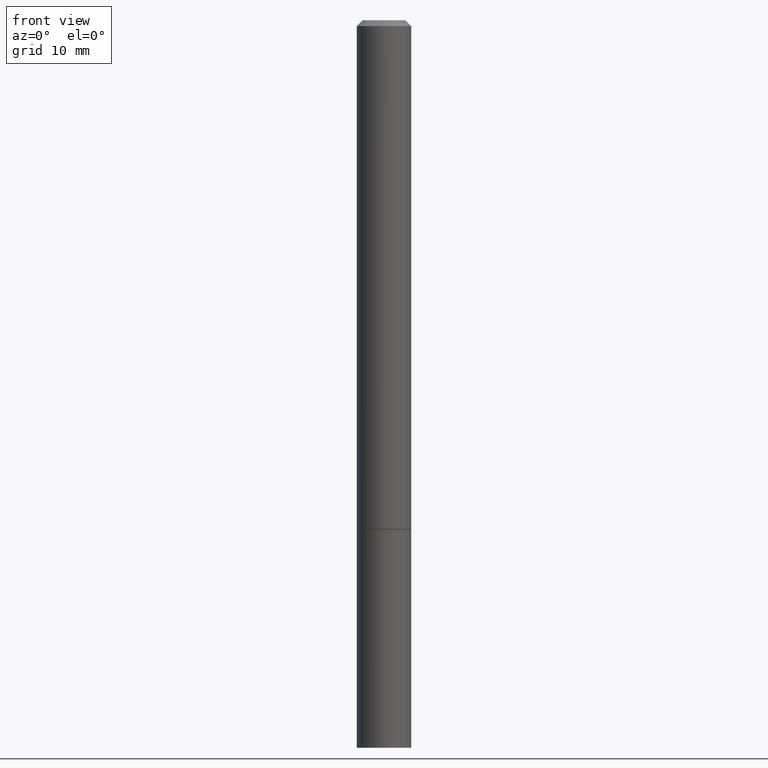
[diagram: clean part render]
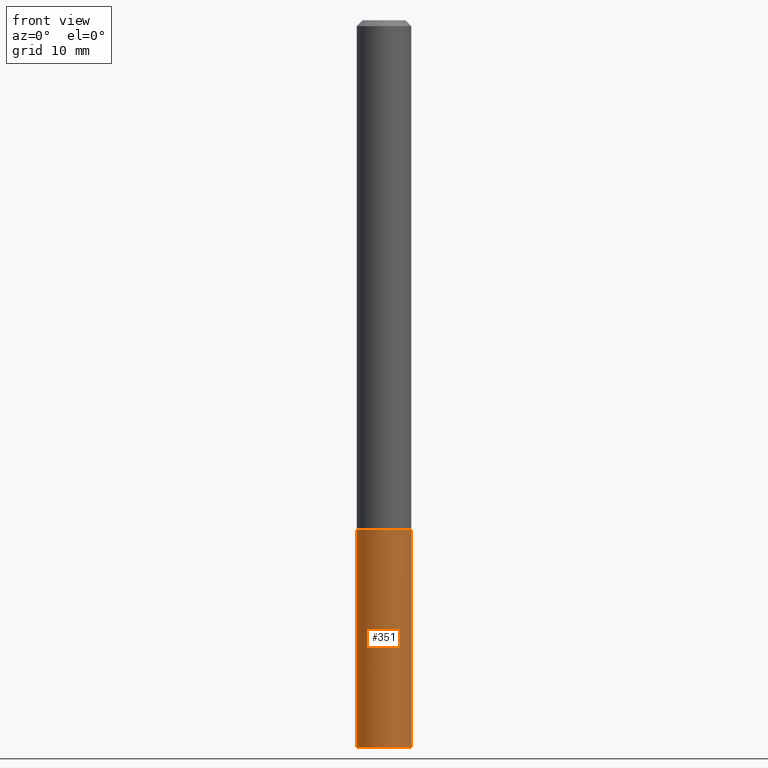
[diagram: same view with one face highlighted and labeled with its STEP entity id]
A machine part, front view. The second image highlights one B-rep face of the part: STEP entity #351.
In plain terms, the highlighted cylindrical surface (edge-blend (fillet) strip) has radius 2.3813 mm, axis along (-0, 0, 1).
Its self-contained STEP definition (entity closure, byte-faithful):
#17 = VERTEX_POINT ( 'NONE', #369 ) ;
#22 = CARTESIAN_POINT ( 'NONE',  ( 0.09374999999999984734, -9.371875034398942871E-15, -2.500000000000000000 ) ) ;
#36 = EDGE_CURVE ( 'NONE', #17, #264, #378, .T. ) ;
#37 = EDGE_CURVE ( 'NONE', #264, #295, #261, .T. ) ;
#43 = DIRECTION ( 'NONE',  ( -2.445468806185136877E-29, 3.491481338843145188E-15, 1.000000000000000000 ) ) ;
#45 = DIRECTION ( 'NONE',  ( 1.000000000000000000, -6.982962677686272233E-15, 0.000000000000000000 ) ) ;
#55 = CARTESIAN_POINT ( 'NONE',  ( -0.09375000000000001388, -6.753264030266591277E-15, -1.750000000000000222 ) ) ;
#62 = AXIS2_PLACEMENT_3D ( 'NONE', #390, #179, #214 ) ;
#65 = FACE_OUTER_BOUND ( 'NONE', #326, .T. ) ;
#83 = ORIENTED_EDGE ( 'NONE', *, *, #252, .T. ) ;
#85 = CARTESIAN_POINT ( 'NONE',  ( 0.09375000000000001388, -6.546527510330875041E-16, 4.571415727308690506E-30 ) ) ;
#105 = DIRECTION ( 'NONE',  ( -2.445468806185136597E-29, 3.491481338843145583E-15, 1.000000000000000000 ) ) ;
#109 = ORIENTED_EDGE ( 'NONE', *, *, #130, .T. ) ;
#114 = LINE ( 'NONE', #85, #191 ) ;
#118 = ORIENTED_EDGE ( 'NONE', *, *, #37, .F. ) ;
#126 = CYLINDRICAL_SURFACE ( 'NONE', #62, 0.09375000000000001388 ) ;
#130 = EDGE_CURVE ( 'NONE', #17, #181, #314, .T. ) ;
#163 = CARTESIAN_POINT ( 'NONE',  ( -0.09375000000000001388, 6.661338147750940229E-16, -4.611501647113973995E-30 ) ) ;
#176 = VECTOR ( 'NONE', #43, 39.37007874015748143 ) ;
#179 = DIRECTION ( 'NONE',  ( -2.445468806185136597E-29, 3.491481338843145583E-15, 1.000000000000000000 ) ) ;
#181 = VERTEX_POINT ( 'NONE', #22 ) ;
#191 = VECTOR ( 'NONE', #206, 39.37007874015748143 ) ;
#206 = DIRECTION ( 'NONE',  ( -2.445468806185136877E-29, 3.491481338843145188E-15, 1.000000000000000000 ) ) ;
#212 = CARTESIAN_POINT ( 'NONE',  ( 0.09375000000000001388, -6.764745094008592175E-15, -1.750000000000000222 ) ) ;
#214 = DIRECTION ( 'NONE',  ( 1.000000000000000000, -6.982962677686265922E-15, 4.876176775795935793E-29 ) ) ;
#227 = DIRECTION ( 'NONE',  ( 1.000000000000000000, -6.982962677686261189E-15, 0.000000000000000000 ) ) ;
#252 = EDGE_CURVE ( 'NONE', #181, #295, #114, .T. ) ;
#259 = CARTESIAN_POINT ( 'NONE',  ( 6.113672015462842613E-29, -8.728703347107864943E-15, -2.500000000000000000 ) ) ;
#261 = CIRCLE ( 'NONE', #330, 0.09375000000000001388 ) ;
#264 = VERTEX_POINT ( 'NONE', #55 ) ;
#290 = ORIENTED_EDGE ( 'NONE', *, *, #36, .F. ) ;
#295 = VERTEX_POINT ( 'NONE', #212 ) ;
#314 = CIRCLE ( 'NONE', #384, 0.09375000000000001388 ) ;
#318 = DIRECTION ( 'NONE',  ( -2.445468806185136597E-29, 3.491481338843145583E-15, 1.000000000000000000 ) ) ;
#326 = EDGE_LOOP ( 'NONE', ( #290, #109, #83, #118 ) ) ;
#330 = AXIS2_PLACEMENT_3D ( 'NONE', #371, #105, #227 ) ;
#351 = ADVANCED_FACE ( 'NONE', ( #65 ), #126, .T. ) ;
#369 = CARTESIAN_POINT ( 'NONE',  ( -0.09374999999999984734, -8.074050596074776650E-15, -2.500000000000000000 ) ) ;
#371 = CARTESIAN_POINT ( 'NONE',  ( 4.279570410823989044E-29, -6.110092342975505460E-15, -1.750000000000000222 ) ) ;
#378 = LINE ( 'NONE', #163, #176 ) ;
#384 = AXIS2_PLACEMENT_3D ( 'NONE', #259, #318, #45 ) ;
#390 = CARTESIAN_POINT ( 'NONE',  ( 0.000000000000000000, 0.000000000000000000, 0.000000000000000000 ) ) ;